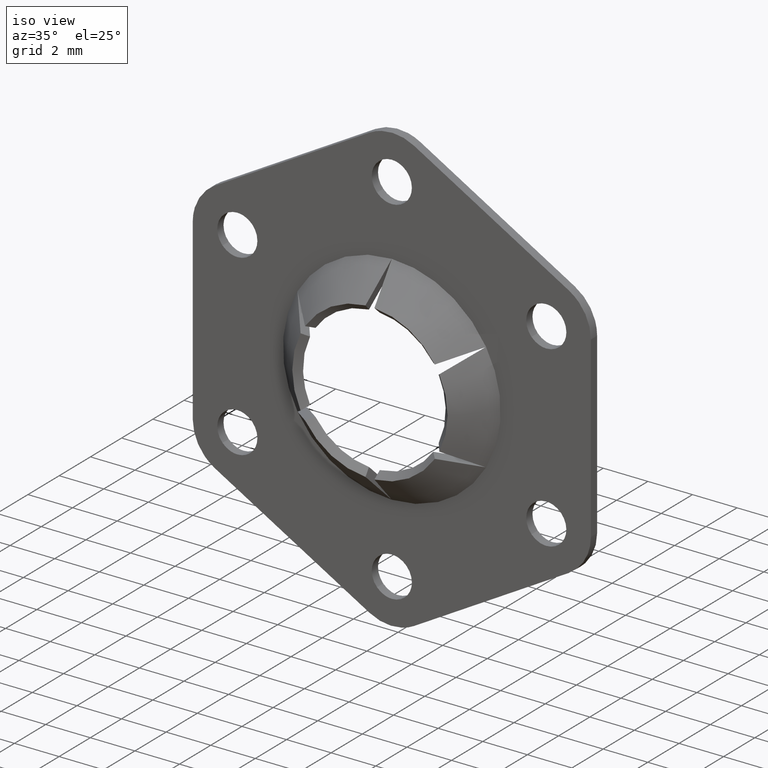
[diagram: clean part render]
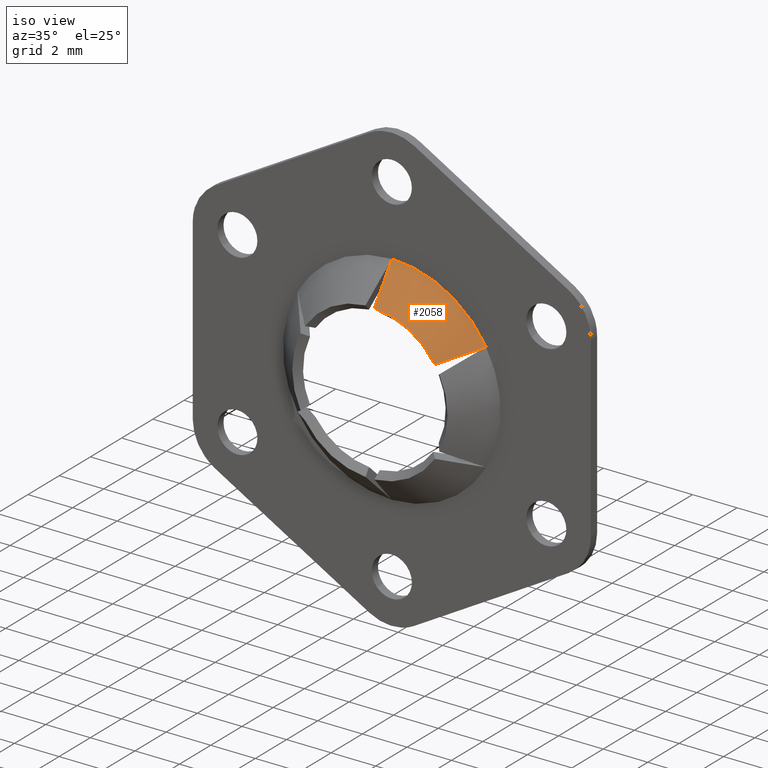
[diagram: tour spotlight — one face highlighted and labeled with its STEP entity id]
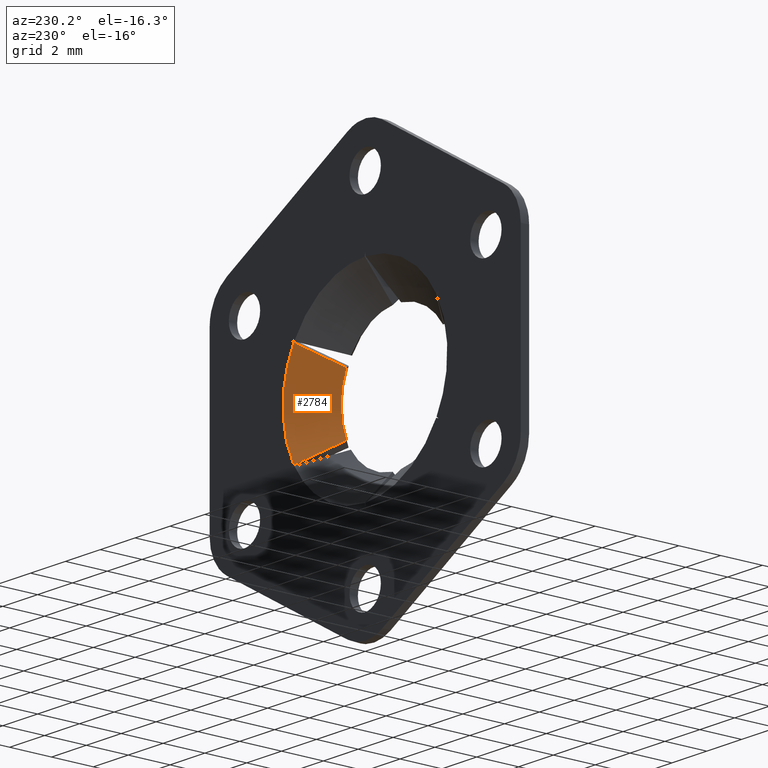
[diagram: tour spotlight — one face highlighted and labeled with its STEP entity id]
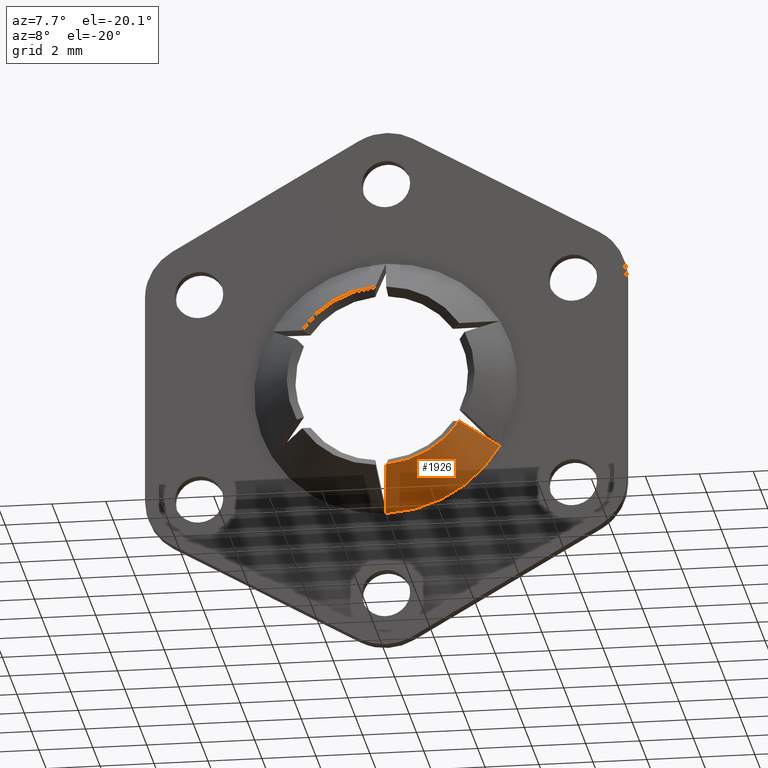
[diagram: tour spotlight — one face highlighted and labeled with its STEP entity id]
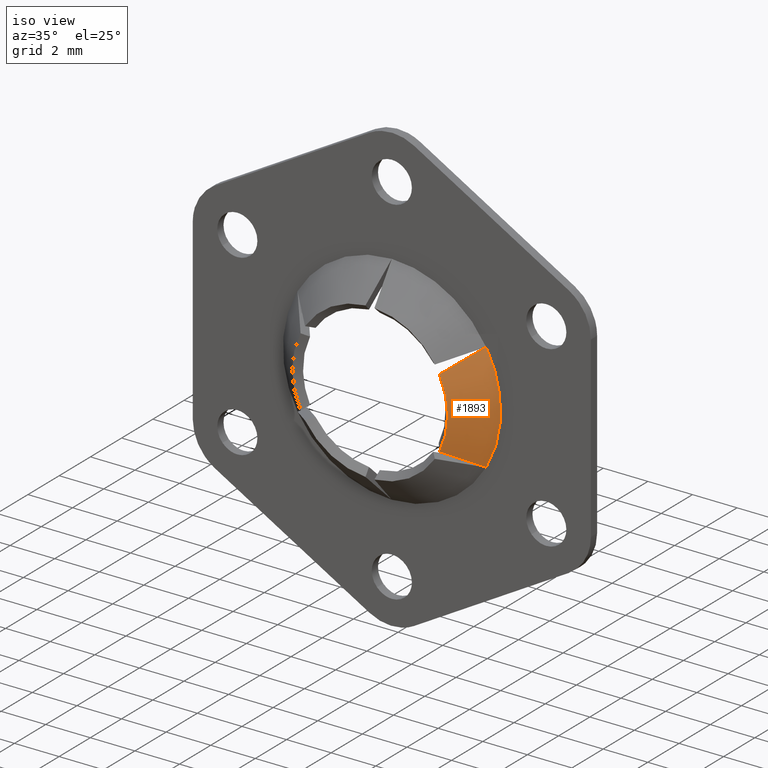
[diagram: tour spotlight — one face highlighted and labeled with its STEP entity id]
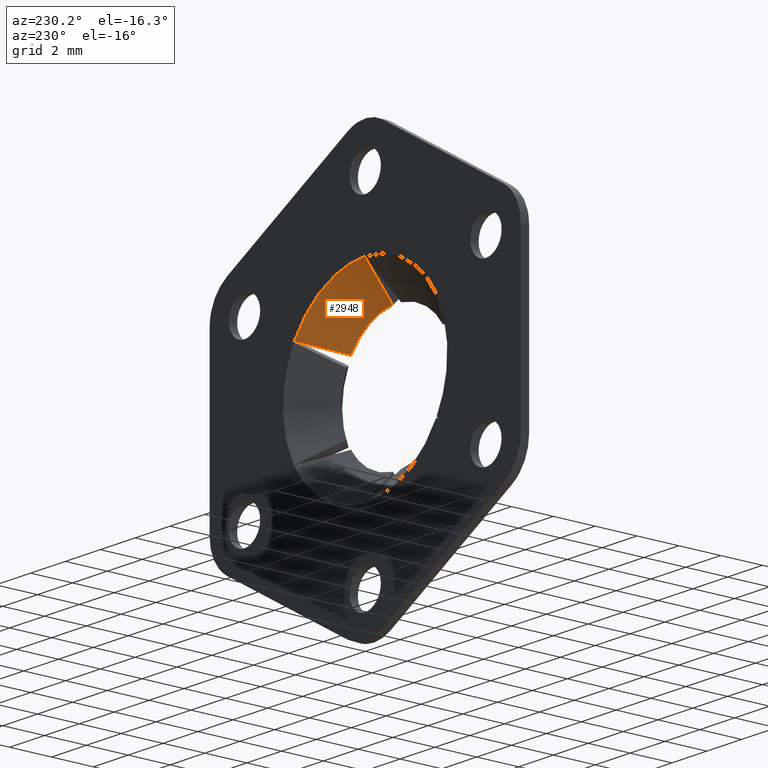
[diagram: tour spotlight — one face highlighted and labeled with its STEP entity id]
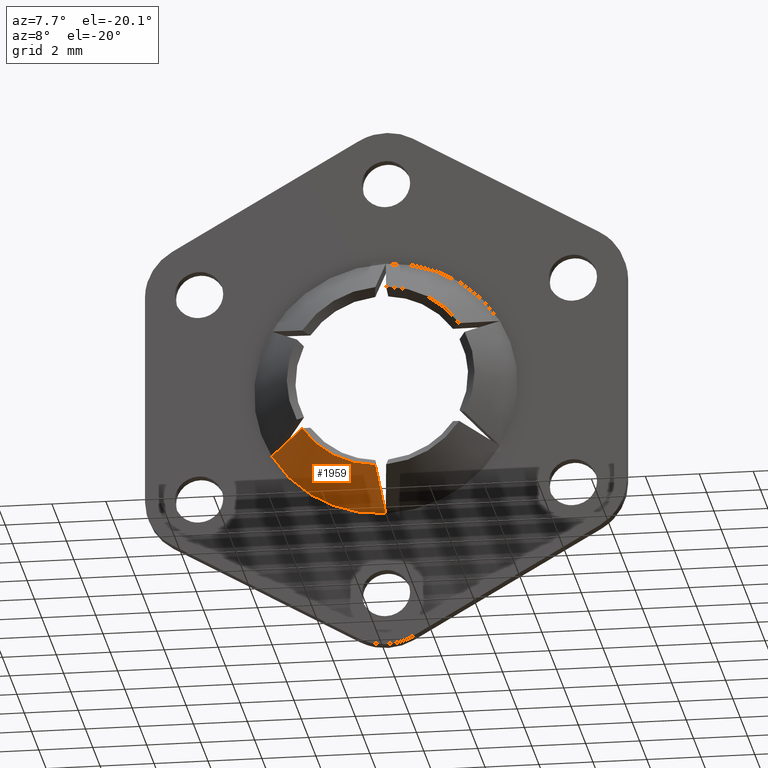
[diagram: tour spotlight — one face highlighted and labeled with its STEP entity id]
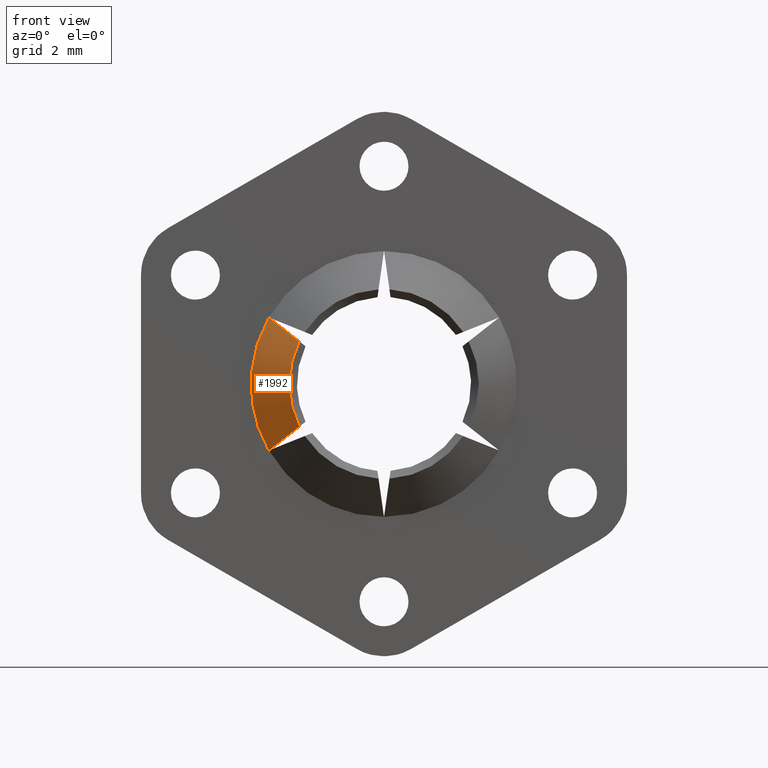
[diagram: tour spotlight — one face highlighted and labeled with its STEP entity id]
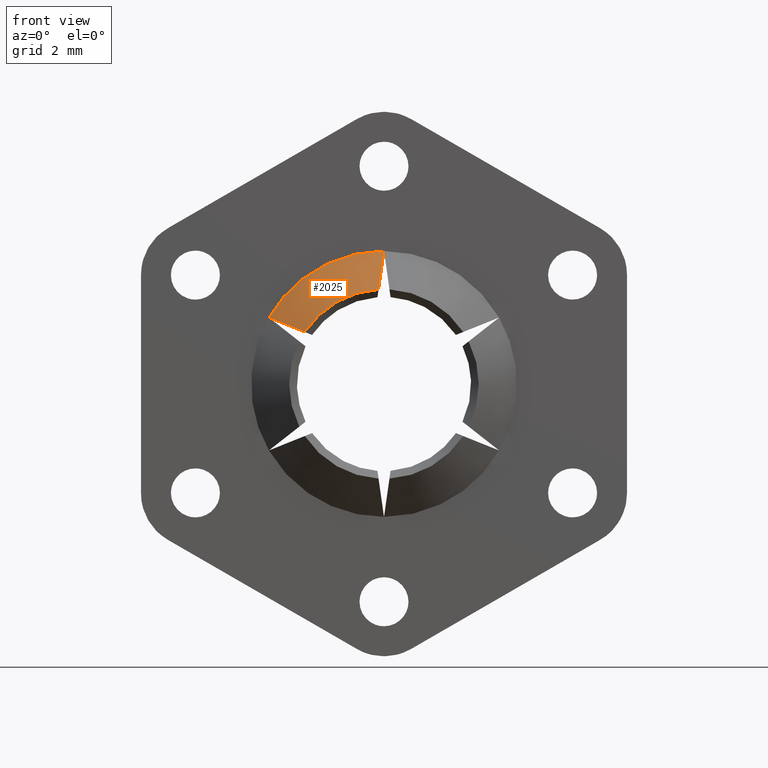
[diagram: tour spotlight — one face highlighted and labeled with its STEP entity id]
A machine part: a face-by-face anatomy tour. The part has 56 B-rep faces; the first image is the clean iso view, then the 8 largest visible faces are spotlighted one at a time (largest first), each with its STEP entity span.

Face 1 — iso view, entity #2058. In plain terms, the highlighted face is a freeform B-spline surface patch.
Definition (entity closure, byte-faithful):
#1368=CARTESIAN_POINT('',(4.228665831922995,-0.399999999778553,2.441421356044500));
#1369=VERTEX_POINT('',#1368);
#1370=CARTESIAN_POINT('',(5.671694E-010,-0.399999999432524,4.882842712437689));
#1371=VERTEX_POINT('',#1370);
#1372=CARTESIAN_POINT('',(4.228665831922995,-0.399999999778553,2.441421356044500));
#1373=CARTESIAN_POINT('',(4.082213974562479,-0.399999999834970,2.695137534144452));
#1374=CARTESIAN_POINT('',(3.774238652134671,-0.399999999914664,3.132353003157605));
#1375=CARTESIAN_POINT('',(3.203053055338855,-0.399999999969355,3.712971711155307));
#1376=CARTESIAN_POINT('',(2.600081776664502,-0.399999999958532,4.156361265983708));
#1377=CARTESIAN_POINT('',(1.983956836506249,-0.399999999893530,4.476000340431685));
#1378=CARTESIAN_POINT('',(1.395477017048084,-0.399999999795334,4.692012810198213));
#1379=CARTESIAN_POINT('',(0.745683961889104,-0.399999999651729,4.843522340398766));
#1380=CARTESIAN_POINT('',(0.266318580091984,-0.399999999516499,4.882863967473429));
#1381=CARTESIAN_POINT('',(5.671694E-010,-0.399999999432524,4.882842712437689));
#1382=B_SPLINE_CURVE_WITH_KNOTS('',3,(#1372,#1373,#1374,#1375,#1376,#1377,#1378,#1379,#1380,#1381),.UNSPECIFIED.,.F.,.U.,(4,1,1,1,1,1,1,4),(3.223950E-009,0.878850905600246,1.597912135177144,2.436818729151852,3.115923655223673,3.675194516514067,4.314361123087673,5.113315190832218),.UNSPECIFIED.);
#1383=EDGE_CURVE('',#1369,#1371,#1382,.T.);
#1819=CARTESIAN_POINT('',(0.200000000648660,-1.799999999999755,3.477095534436290));
#1820=VERTEX_POINT('',#1819);
#1839=CARTESIAN_POINT('',(2.911253064794080,-1.799999999999755,1.911752847953590));
#1840=VERTEX_POINT('',#1839);
#1846=CARTESIAN_POINT('',(2.911253064794080,-1.799999999999755,1.911752847953590));
#1847=CARTESIAN_POINT('',(2.758143847903166,-1.799999999999757,2.145046092451522));
#1848=CARTESIAN_POINT('',(2.505304537217076,-1.799999999999757,2.444302205702622));
#1849=CARTESIAN_POINT('',(2.072247280041721,-1.799999999999755,2.810564399428525));
#1850=CARTESIAN_POINT('',(1.724260011334876,-1.799999999999748,3.037673988051247));
#1851=CARTESIAN_POINT('',(1.266107479502572,-1.799999999999771,3.257371548567487));
#1852=CARTESIAN_POINT('',(0.772248610509275,-1.799999999999711,3.412901639271917));
#1853=CARTESIAN_POINT('',(0.385719605237097,-1.799999999999813,3.466422706323168));
#1854=CARTESIAN_POINT('',(0.200000000648660,-1.799999999999755,3.477095534436290));
#1855=B_SPLINE_CURVE_WITH_KNOTS('',3,(#1846,#1847,#1848,#1849,#1850,#1851,#1852,#1853,#1854),.UNSPECIFIED.,.F.,.U.,(4,1,1,1,1,1,4),(5.463257E-009,0.837120251755995,1.166897134908798,1.699606050078934,2.080114242575288,2.688932201111038,3.247011372020864),.UNSPECIFIED.);
#1856=EDGE_CURVE('',#1840,#1820,#1855,.T.);
#2026=CARTESIAN_POINT('',(3.038367714859402,-1.835000000013936,1.629705801194532));
#2027=CARTESIAN_POINT('',(4.334557676832496,-0.364124999417988,2.324950254504464));
#2028=CARTESIAN_POINT('',(2.007231822347071,-1.835000000013936,3.552120265548171));
#2029=CARTESIAN_POINT('',(2.863531646264251,-0.364124999417988,5.067480835721034));
#2030=CARTESIAN_POINT('',(-0.171560462519251,-1.835000000013936,3.443571746487400));
#2031=CARTESIAN_POINT('',(-0.244749414955127,-0.364124999417988,4.912624721917278));
#2039=(BOUNDED_SURFACE()B_SPLINE_SURFACE(1,2,((#2026,#2028,#2030),(#2027,#2029,#2031)),.UNSPECIFIED.,.F.,.F.,.U.)B_SPLINE_SURFACE_WITH_KNOTS((2,2),(3,3),(0.0,2.080131374398302),(0.0,5.701569485248939),.UNSPECIFIED.)GEOMETRIC_REPRESENTATION_ITEM()RATIONAL_B_SPLINE_SURFACE(((1.0,0.844295815013650,0.998201706540709),(1.0,0.844295815013650,0.998201706540709)))REPRESENTATION_ITEM('')SURFACE());
#2040=CARTESIAN_POINT('',(0.200000000648659,-1.799999999999757,3.477095534436292));
#2041=CARTESIAN_POINT('',(0.133143661611808,-1.334699059106625,3.947011083907615));
#2042=CARTESIAN_POINT('',(0.066532033697918,-0.867636088343224,4.415206623527004));
#2043=CARTESIAN_POINT('',(5.671690E-010,-0.399999999432526,4.882842712437693));
#2044=QUASI_UNIFORM_CURVE('',3,(#2040,#2041,#2042,#2043),.UNSPECIFIED.,.F.,.U.);
#2045=EDGE_CURVE('',#1820,#1371,#2044,.T.);
#2046=ORIENTED_EDGE('',*,*,#2045,.F.);
#2047=ORIENTED_EDGE('',*,*,#1856,.F.);
#2048=CARTESIAN_POINT('',(4.228665831922995,-0.399999999778553,2.441421356044500));
#2049=CARTESIAN_POINT('',(3.790415082753387,-0.867636088572851,2.265221742472861));
#2050=CARTESIAN_POINT('',(3.351640037666758,-1.334699059220369,2.088811334651315));
#2051=CARTESIAN_POINT('',(2.911253064794082,-1.799999999999756,1.911752847953590));
#2052=QUASI_UNIFORM_CURVE('',3,(#2048,#2049,#2050,#2051),.UNSPECIFIED.,.F.,.U.);
#2053=EDGE_CURVE('',#1369,#1840,#2052,.T.);
#2054=ORIENTED_EDGE('',*,*,#2053,.F.);
#2055=ORIENTED_EDGE('',*,*,#1383,.T.);
#2056=EDGE_LOOP('',(#2046,#2047,#2054,#2055));
#2057=FACE_OUTER_BOUND('',#2056,.T.);
#2058=ADVANCED_FACE('',(#2057),#2039,.T.);

Face 2 — auxiliary view, entity #2784. In plain terms, the highlighted face is a freeform B-spline surface patch.
Definition (entity closure, byte-faithful):
#1527=CARTESIAN_POINT('',(2.883786124160710,-1.517157287525135,-1.387003096428676));
#1528=VERTEX_POINT('',#1527);
#1548=CARTESIAN_POINT('',(2.883786124640455,-1.517157286957820,1.387003096740090));
#1549=VERTEX_POINT('',#1548);
#1555=CARTESIAN_POINT('',(2.883786124160710,-1.517157287525135,-1.387003096428676));
#1556=CARTESIAN_POINT('',(2.993956600963651,-1.517157287577148,-1.158089051222620));
#1557=CARTESIAN_POINT('',(3.137386547922710,-1.517157287619885,-0.737936672239237));
#1558=CARTESIAN_POINT('',(3.215354183745753,-1.517157287560421,-0.105182546811972));
#1559=CARTESIAN_POINT('',(3.186342547725444,-1.517157287428692,0.411695005910345));
#1560=CARTESIAN_POINT('',(3.078578164545812,-1.517157287228679,0.916906066359411));
#1561=CARTESIAN_POINT('',(2.964764035863858,-1.517157287064930,1.218673552932887));
#1562=CARTESIAN_POINT('',(2.883786124640455,-1.517157286957820,1.387003096740090));
#1563=B_SPLINE_CURVE_WITH_KNOTS('',3,(#1555,#1556,#1557,#1558,#1559,#1560,#1561,#1562),.UNSPECIFIED.,.F.,.U.,(4,1,1,1,1,4),(5.083764E-009,0.762120130689540,1.322505268930577,1.905297423209968,2.308774566487862,2.869156555378236),.UNSPECIFIED.);
#1564=EDGE_CURVE('',#1528,#1549,#1563,.T.);
#2678=CARTESIAN_POINT('',(4.096917482384055,0.0,-2.338127459471490));
#2679=VERTEX_POINT('',#2678);
#2680=CARTESIAN_POINT('',(2.883786124160710,-1.517157287525135,-1.387003096428676));
#2681=CARTESIAN_POINT('',(3.289696845037899,-1.013418259668806,-1.705246931424149));
#2682=CARTESIAN_POINT('',(3.693574139123500,-0.507053827909486,-2.021896510636549));
#2683=CARTESIAN_POINT('',(4.096917482384057,-2.000041E-015,-2.338127459471490));
#2684=QUASI_UNIFORM_CURVE('',3,(#2680,#2681,#2682,#2683),.UNSPECIFIED.,.F.,.U.);
#2685=EDGE_CURVE('',#1528,#2679,#2684,.T.);
#2709=CARTESIAN_POINT('',(4.096917482384026,0.0,2.338127459471545));
#2710=VERTEX_POINT('',#2709);
#2716=CARTESIAN_POINT('',(4.096917482384026,-6.443662E-016,2.338127459471546));
#2717=CARTESIAN_POINT('',(3.693574139273393,-0.507053827721010,2.021896510754152));
#2718=CARTESIAN_POINT('',(3.289696845337934,-1.013418259292137,1.705246931659470));
#2719=CARTESIAN_POINT('',(2.883786124640449,-1.517157286957822,1.387003096740100));
#2720=QUASI_UNIFORM_CURVE('',3,(#2716,#2717,#2718,#2719),.UNSPECIFIED.,.F.,.U.);
#2721=EDGE_CURVE('',#2710,#1549,#2720,.T.);
#2752=CARTESIAN_POINT('',(2.732521317531987,-1.555086219788761,-1.591232442456965));
#2753=CARTESIAN_POINT('',(4.109953642408036,0.038877155494719,-2.393354273684345));
#2754=CARTESIAN_POINT('',(3.703103766820908,-1.555086219788761,0.075486486713972));
#2755=CARTESIAN_POINT('',(5.569795454947929,0.038877155494719,0.113538349748163));
#2756=CARTESIAN_POINT('',(2.665404851594406,-1.555086219788760,1.701267296375022));
#2757=CARTESIAN_POINT('',(4.009004543897784,0.038877155494719,2.558856422114891));
#2765=(BOUNDED_SURFACE()B_SPLINE_SURFACE(1,2,((#2752,#2754,#2756),(#2753,#2755,#2757)),.UNSPECIFIED.,.F.,.F.,.U.)B_SPLINE_SURFACE_WITH_KNOTS((2,2),(3,3),(0.0,2.254204623251870),(0.0,5.344106603031732),.UNSPECIFIED.)GEOMETRIC_REPRESENTATION_ITEM()RATIONAL_B_SPLINE_SURFACE(((1.0,0.853223754631969,0.998837441838278),(1.0,0.853223754631969,0.998837441838278)))REPRESENTATION_ITEM('')SURFACE());
#2766=ORIENTED_EDGE('',*,*,#2685,.F.);
#2767=ORIENTED_EDGE('',*,*,#1564,.T.);
#2768=ORIENTED_EDGE('',*,*,#2721,.F.);
#2769=CARTESIAN_POINT('',(4.096917482384055,0.0,-2.338127459471490));
#2770=CARTESIAN_POINT('',(4.267494843952375,0.0,-2.039375215499924));
#2771=CARTESIAN_POINT('',(4.491783098417831,0.0,-1.521925076195961));
#2772=CARTESIAN_POINT('',(4.658396806185126,0.0,-0.813270560915193));
#2773=CARTESIAN_POINT('',(4.721076613816451,0.0,-0.242551454385376));
#2774=CARTESIAN_POINT('',(4.718752641582490,0.0,0.331858116992912));
#2775=CARTESIAN_POINT('',(4.630239657379656,0.0,0.990050967355044));
#2776=CARTESIAN_POINT('',(4.429917981779575,0.0,1.677305953446717));
#2777=CARTESIAN_POINT('',(4.216921590578015,0.0,2.127880824076427));
#2778=CARTESIAN_POINT('',(4.096917482384026,0.0,2.338127459471545));
#2779=B_SPLINE_CURVE_WITH_KNOTS('',3,(#2769,#2770,#2771,#2772,#2773,#2774,#2775,#2776,#2777,#2778),.UNSPECIFIED.,.F.,.U.,(4,1,1,1,1,1,1,4),(3.504942E-009,1.032042556748139,1.681848063950727,2.178760920529561,2.752111089576030,3.401917337270820,4.166394822494453,4.892646820824748),.UNSPECIFIED.);
#2780=EDGE_CURVE('',#2679,#2710,#2779,.T.);
#2781=ORIENTED_EDGE('',*,*,#2780,.F.);
#2782=EDGE_LOOP('',(#2766,#2767,#2768,#2781));
#2783=FACE_OUTER_BOUND('',#2782,.T.);
#2784=ADVANCED_FACE('',(#2783),#2765,.F.);

Face 3 — auxiliary view, entity #1926. In plain terms, the highlighted face is a freeform B-spline surface patch.
Definition (entity closure, byte-faithful):
#1385=CARTESIAN_POINT('',(4.228665831922940,-0.399999999778694,-2.441421356044315));
#1386=VERTEX_POINT('',#1385);
#1400=CARTESIAN_POINT('',(5.671552E-010,-0.399999999432510,-4.882842712437710));
#1401=VERTEX_POINT('',#1400);
#1402=CARTESIAN_POINT('',(5.671552E-010,-0.399999999432510,-4.882842712437710));
#1403=CARTESIAN_POINT('',(0.239685894495929,-0.399999999491425,-4.882856136851310));
#1404=CARTESIAN_POINT('',(0.625842288741747,-0.399999999578240,-4.854349014677995));
#1405=CARTESIAN_POINT('',(1.201527657926056,-0.399999999687917,-4.742279041430566));
#1406=CARTESIAN_POINT('',(1.826320833412122,-0.399999999786887,-4.549995974123616));
#1407=CARTESIAN_POINT('',(2.463358174566005,-0.399999999855187,-4.239072925915731));
#1408=CARTESIAN_POINT('',(3.021217878623665,-0.399999999881705,-3.849549527428501));
#1409=CARTESIAN_POINT('',(3.430790404217528,-0.399999999879556,-3.487391842433408));
#1410=CARTESIAN_POINT('',(3.844581188699480,-0.399999999852697,-3.034583002830239));
#1411=CARTESIAN_POINT('',(4.095525779814480,-0.399999999811456,-2.672071662843246));
#1412=CARTESIAN_POINT('',(4.228665831922940,-0.399999999778694,-2.441421356044315));
#1413=B_SPLINE_CURVE_WITH_KNOTS('',3,(#1402,#1403,#1404,#1405,#1406,#1407,#1408,#1409,#1410,#1411,#1412),.UNSPECIFIED.,.F.,.U.,(4,1,1,1,1,1,1,1,4),(3.223587E-009,0.719057276337212,1.158484981428811,1.757703529302074,2.676496464932868,3.275714870168947,3.795038565905387,4.314361123133773,5.113315190886889),.UNSPECIFIED.);
#1414=EDGE_CURVE('',#1401,#1386,#1413,.T.);
#1583=CARTESIAN_POINT('',(0.200000000648650,-1.799999999999755,-3.477095534436290));
#1584=VERTEX_POINT('',#1583);
#1592=CARTESIAN_POINT('',(2.911253064794126,-1.799999999999755,-1.911752847953520));
#1593=VERTEX_POINT('',#1592);
#1594=CARTESIAN_POINT('',(0.200000000648650,-1.799999999999755,-3.477095534436290));
#1595=CARTESIAN_POINT('',(0.385720634755419,-1.799999999999759,-3.466426201001502));
#1596=CARTESIAN_POINT('',(0.688215282810916,-1.799999999999751,-3.424522408653563));
#1597=CARTESIAN_POINT('',(1.169836884468680,-1.799999999999758,-3.291924781499448));
#1598=CARTESIAN_POINT('',(1.575656897856036,-1.799999999999758,-3.118711077039376));
#1599=CARTESIAN_POINT('',(1.967447764375916,-1.799999999999743,-2.882878115433987));
#1600=CARTESIAN_POINT('',(2.310109573116161,-1.799999999999759,-2.619846615883303));
#1601=CARTESIAN_POINT('',(2.633703345551067,-1.799999999999748,-2.295982851685160));
#1602=CARTESIAN_POINT('',(2.827712631212256,-1.799999999999751,-2.038979456712473));
#1603=CARTESIAN_POINT('',(2.911253064794126,-1.799999999999755,-1.911752847953520));
#1604=B_SPLINE_CURVE_WITH_KNOTS('',3,(#1594,#1595,#1596,#1597,#1598,#1599,#1600,#1601,#1602,#1603),.UNSPECIFIED.,.F.,.U.,(4,1,1,1,1,1,1,4),(5.464396E-009,0.558079176374006,0.913222480072504,1.496674051967119,1.877177151917556,2.283054428781426,2.790402818187850,3.247011372020952),.UNSPECIFIED.);
#1605=EDGE_CURVE('',#1584,#1593,#1604,.T.);
#1894=CARTESIAN_POINT('',(-0.030087721250670,-1.835000000013936,-3.447711428570626));
#1895=CARTESIAN_POINT('',(-0.042923364157036,-0.364124999417974,-4.918530422753547));
#1896=CARTESIAN_POINT('',(2.097732363860233,-1.835000000013937,-3.466280633135902));
#1897=CARTESIAN_POINT('',(2.992640382865429,-0.364124999417974,-4.945021386244221));
#1898=CARTESIAN_POINT('',(3.068303865191045,-1.835000000013937,-1.572619076583619));
#1899=CARTESIAN_POINT('',(4.377264808562310,-0.364124999417974,-2.243509914281293));
#1907=(BOUNDED_SURFACE()B_SPLINE_SURFACE(1,2,((#1894,#1896,#1898),(#1895,#1897,#1899)),.UNSPECIFIED.,.F.,.F.,.U.)B_SPLINE_SURFACE_WITH_KNOTS((2,2),(3,3),(0.0,2.080131374398322),(0.0,5.582557313150018),.UNSPECIFIED.)GEOMETRIC_REPRESENTATION_ITEM()RATIONAL_B_SPLINE_SURFACE(((1.0,0.849639097865968,0.996851313523656),(1.0,0.849639097865968,0.996851313523656)))REPRESENTATION_ITEM('')SURFACE());
#1908=CARTESIAN_POINT('',(5.671693E-010,-0.399999999432509,-4.882842712437711));
#1909=CARTESIAN_POINT('',(0.066532033697915,-0.867636088343213,-4.415206623527016));
#1910=CARTESIAN_POINT('',(0.133143661611803,-1.334699059106619,-3.947011083907621));
#1911=CARTESIAN_POINT('',(0.200000000648650,-1.799999999999757,-3.477095534436292));
#1912=QUASI_UNIFORM_CURVE('',3,(#1908,#1909,#1910,#1911),.UNSPECIFIED.,.F.,.U.);
#1913=EDGE_CURVE('',#1401,#1584,#1912,.T.);
#1914=ORIENTED_EDGE('',*,*,#1913,.F.);
#1915=ORIENTED_EDGE('',*,*,#1414,.T.);
#1916=CARTESIAN_POINT('',(2.911253064794128,-1.799999999999757,-1.911752847953518));
#1917=CARTESIAN_POINT('',(3.351640037666760,-1.334699059220414,-2.088811334651227));
#1918=CARTESIAN_POINT('',(3.790415082753343,-0.867636088572941,-2.265221742472756));
#1919=CARTESIAN_POINT('',(4.228665831922941,-0.399999999778696,-2.441421356044315));
#1920=QUASI_UNIFORM_CURVE('',3,(#1916,#1917,#1918,#1919),.UNSPECIFIED.,.F.,.U.);
#1921=EDGE_CURVE('',#1593,#1386,#1920,.T.);
#1922=ORIENTED_EDGE('',*,*,#1921,.F.);
#1923=ORIENTED_EDGE('',*,*,#1605,.F.);
#1924=EDGE_LOOP('',(#1914,#1915,#1922,#1923));
#1925=FACE_OUTER_BOUND('',#1924,.T.);
#1926=ADVANCED_FACE('',(#1925),#1907,.T.);

Face 4 — iso view, entity #1893. In plain terms, the highlighted face is a freeform B-spline surface patch.
Definition (entity closure, byte-faithful):
#1368=CARTESIAN_POINT('',(4.228665831922995,-0.399999999778553,2.441421356044500));
#1369=VERTEX_POINT('',#1368);
#1385=CARTESIAN_POINT('',(4.228665831922940,-0.399999999778694,-2.441421356044315));
#1386=VERTEX_POINT('',#1385);
#1387=CARTESIAN_POINT('',(4.228665831922940,-0.399999999778694,-2.441421356044315));
#1388=CARTESIAN_POINT('',(4.415164644159419,-0.399999999824579,-2.118562625440129));
#1389=CARTESIAN_POINT('',(4.649607347703973,-0.399999999882251,-1.577425071139615));
#1390=CARTESIAN_POINT('',(4.822307301249190,-0.399999999924727,-0.836652171696700));
#1391=CARTESIAN_POINT('',(4.889917651106513,-0.399999999941345,-0.226993237701653));
#1392=CARTESIAN_POINT('',(4.881265795837216,-0.399999999939200,0.480406723348584));
#1393=CARTESIAN_POINT('',(4.752545058600859,-0.399999999907498,1.204673758926947));
#1394=CARTESIAN_POINT('',(4.518148493588883,-0.399999999849803,1.885893703829773));
#1395=CARTESIAN_POINT('',(4.335199159711318,-0.399999999804773,2.256915499587532));
#1396=CARTESIAN_POINT('',(4.228665831922995,-0.399999999778553,2.441421356044500));
#1397=B_SPLINE_CURVE_WITH_KNOTS('',3,(#1387,#1388,#1389,#1390,#1391,#1392,#1393,#1394,#1395,#1396),.UNSPECIFIED.,.F.,.U.,(4,1,1,1,1,1,1,4),(3.223986E-009,1.118536922695297,1.757703529260555,2.277028003934650,2.956133427169651,3.874934221944759,4.474154039083334,5.113315190765248),.UNSPECIFIED.);
#1398=EDGE_CURVE('',#1386,#1369,#1397,.T.);
#1525=CARTESIAN_POINT('',(3.111253064819965,-1.799999999999755,-1.565342686381095));
#1526=VERTEX_POINT('',#1525);
#1534=CARTESIAN_POINT('',(3.111253064819935,-1.799999999999755,1.565342686381155));
#1535=VERTEX_POINT('',#1534);
#1536=CARTESIAN_POINT('',(3.111253064819965,-1.799999999999755,-1.565342686381095));
#1537=CARTESIAN_POINT('',(3.248166648779356,-1.799999999999778,-1.293447811997303));
#1538=CARTESIAN_POINT('',(3.382625318352657,-1.799999999999718,-0.906805069023709));
#1539=CARTESIAN_POINT('',(3.473080716780291,-1.799999999999786,-0.346985019670936));
#1540=CARTESIAN_POINT('',(3.493952962603611,-1.799999999999715,0.093271352882118));
#1541=CARTESIAN_POINT('',(3.447324585319220,-1.799999999999782,0.565884639108387));
#1542=CARTESIAN_POINT('',(3.327988015900791,-1.799999999999745,1.068592170956538));
#1543=CARTESIAN_POINT('',(3.202479632534940,-1.799999999999765,1.384064499608604));
#1544=CARTESIAN_POINT('',(3.111253064819935,-1.799999999999755,1.565342686381155));
#1545=B_SPLINE_CURVE_WITH_KNOTS('',3,(#1536,#1537,#1538,#1539,#1540,#1541,#1542,#1543,#1544),.UNSPECIFIED.,.F.,.U.,(4,1,1,1,1,1,4),(5.463196E-009,0.913222480034711,1.217629680949476,1.699606050010118,2.232318876382984,2.638198184182730,3.247011371889406),.UNSPECIFIED.);
#1546=EDGE_CURVE('',#1526,#1535,#1545,.T.);
#1861=CARTESIAN_POINT('',(2.970761821726383,-1.835000000005285,-1.749912445724919));
#1862=CARTESIAN_POINT('',(4.238110613291283,-0.364124999772884,-2.496437935462247));
#1863=CARTESIAN_POINT('',(4.043109547642487,-1.835000000005285,0.070572739657481));
#1864=CARTESIAN_POINT('',(5.767929747684971,-0.364124999772884,0.100679588239315));
#1865=CARTESIAN_POINT('',(2.907881050261719,-1.835000000005285,1.852524538727490));
#1866=CARTESIAN_POINT('',(4.148404443317456,-0.364124999772884,2.642825100279901));
#1874=(BOUNDED_SURFACE()B_SPLINE_SURFACE(1,2,((#1861,#1863,#1865),(#1862,#1864,#1866)),.UNSPECIFIED.,.F.,.F.,.U.)B_SPLINE_SURFACE_WITH_KNOTS((2,2),(3,3),(0.0,2.080131373884169),(0.0,5.548887461823513),.UNSPECIFIED.)GEOMETRIC_REPRESENTATION_ITEM()RATIONAL_B_SPLINE_SURFACE(((1.0,0.852640164354093,1.0),(1.0,0.852640164354093,1.0)))REPRESENTATION_ITEM('')SURFACE());
#1875=CARTESIAN_POINT('',(4.228665831922940,-0.399999999778694,-2.441421356044315));
#1876=CARTESIAN_POINT('',(3.856947115866550,-0.867636088574105,-2.149984880787409));
#1877=CARTESIAN_POINT('',(3.484783698675756,-1.334699059222061,-1.858199749071793));
#1878=CARTESIAN_POINT('',(3.111253064819969,-1.799999999999758,-1.565342686381095));
#1879=QUASI_UNIFORM_CURVE('',3,(#1875,#1876,#1877,#1878),.UNSPECIFIED.,.F.,.U.);
#1880=EDGE_CURVE('',#1386,#1526,#1879,.T.);
#1881=ORIENTED_EDGE('',*,*,#1880,.F.);
#1882=ORIENTED_EDGE('',*,*,#1398,.T.);
#1883=CARTESIAN_POINT('',(3.111253064819937,-1.799999999999758,1.565342686381157));
#1884=CARTESIAN_POINT('',(3.484783698675762,-1.334699059222013,1.858199749071882));
#1885=CARTESIAN_POINT('',(3.856947115866595,-0.867636088574009,2.149984880787526));
#1886=CARTESIAN_POINT('',(4.228665831922996,-0.399999999778555,2.441421356044501));
#1887=QUASI_UNIFORM_CURVE('',3,(#1883,#1884,#1885,#1886),.UNSPECIFIED.,.F.,.U.);
#1888=EDGE_CURVE('',#1535,#1369,#1887,.T.);
#1889=ORIENTED_EDGE('',*,*,#1888,.F.);
#1890=ORIENTED_EDGE('',*,*,#1546,.F.);
#1891=EDGE_LOOP('',(#1881,#1882,#1889,#1890));
#1892=FACE_OUTER_BOUND('',#1891,.T.);
#1893=ADVANCED_FACE('',(#1892),#1874,.T.);

Face 5 — auxiliary view, entity #2948. In plain terms, the highlighted face is a freeform B-spline surface patch.
Definition (entity closure, byte-faithful):
#1817=CARTESIAN_POINT('',(0.240713145676551,-1.517157286957840,3.190933590900285));
#1818=VERTEX_POINT('',#1817);
#1826=CARTESIAN_POINT('',(2.643072979051315,-1.517157287525135,1.803930493821855));
#1827=VERTEX_POINT('',#1826);
#1828=CARTESIAN_POINT('',(2.643072979051315,-1.517157287525135,1.803930493821855));
#1829=CARTESIAN_POINT('',(2.499911814038863,-1.517157287577146,2.013797048931001));
#1830=CARTESIAN_POINT('',(2.178065698114783,-1.517157287624242,2.382094065152273));
#1831=CARTESIAN_POINT('',(1.660066995109458,-1.517157287552396,2.755993497230718));
#1832=CARTESIAN_POINT('',(1.193896704062698,-1.517157287411295,2.979137231474824));
#1833=CARTESIAN_POINT('',(0.745225174953263,-1.517157287228740,3.124579566505858));
#1834=CARTESIAN_POINT('',(0.426979859332968,-1.517157287064819,3.176898186675830));
#1835=CARTESIAN_POINT('',(0.240713145676551,-1.517157286957840,3.190933590900285));
#1836=B_SPLINE_CURVE_WITH_KNOTS('',3,(#1828,#1829,#1830,#1831,#1832,#1833,#1834,#1835),.UNSPECIFIED.,.F.,.U.,(4,1,1,1,1,4),(5.085469E-009,0.762120130721470,1.456988846671986,1.905297423287359,2.308774566581328,2.869156555494018),.UNSPECIFIED.);
#1837=EDGE_CURVE('',#1827,#1818,#1836,.T.);
#2454=CARTESIAN_POINT('',(0.023580964328137,0.0,4.717098346197560));
#2455=VERTEX_POINT('',#2454);
#2461=CARTESIAN_POINT('',(0.023580964328136,-1.209457E-015,4.717098346197561));
#2462=CARTESIAN_POINT('',(0.095773327803901,-0.507053827720411,4.209677290257771));
#2463=CARTESIAN_POINT('',(0.168061260408711,-1.013418259291245,3.701584504150955));
#2464=CARTESIAN_POINT('',(0.240713145676551,-1.517157286957841,3.190933590900285));
#2465=QUASI_UNIFORM_CURVE('',3,(#2461,#2462,#2463,#2464),.UNSPECIFIED.,.F.,.U.);
#2466=EDGE_CURVE('',#2455,#1818,#2465,.T.);
#2734=CARTESIAN_POINT('',(4.073336518672430,0.0,2.378970886711640));
#2735=VERTEX_POINT('',#2734);
#2736=CARTESIAN_POINT('',(2.643072979051316,-1.517157287525136,1.803930493821855));
#2737=CARTESIAN_POINT('',(3.121635585193014,-1.013418259670151,1.996337572262086));
#2738=CARTESIAN_POINT('',(3.597800811909445,-0.507053827909752,2.187780779381806));
#2739=CARTESIAN_POINT('',(4.073336518672430,4.387245E-016,2.378970886711639));
#2740=QUASI_UNIFORM_CURVE('',3,(#2736,#2737,#2738,#2739),.UNSPECIFIED.,.F.,.U.);
#2741=EDGE_CURVE('',#1827,#2735,#2740,.T.);
#2916=CARTESIAN_POINT('',(2.744308377548902,-1.555086219788757,1.570816655635725));
#2917=CARTESIAN_POINT('',(4.127682422762774,0.038877155494719,2.362647125353583));
#2918=CARTESIAN_POINT('',(1.786178668568948,-1.555086219788758,3.244725177776165));
#2919=CARTESIAN_POINT('',(2.686570632589398,0.038877155494719,4.880353532241283));
#2920=CARTESIAN_POINT('',(-0.140638271196315,-1.555086219788757,3.158941960547907));
#2921=CARTESIAN_POINT('',(-0.211532393938919,0.038877155494719,4.751327989469775));
#2929=(BOUNDED_SURFACE()B_SPLINE_SURFACE(1,2,((#2916,#2918,#2920),(#2917,#2919,#2921)),.UNSPECIFIED.,.F.,.F.,.U.)B_SPLINE_SURFACE_WITH_KNOTS((2,2),(3,3),(0.0,2.254204623251867),(0.0,5.344106603031734),.UNSPECIFIED.)GEOMETRIC_REPRESENTATION_ITEM()RATIONAL_B_SPLINE_SURFACE(((1.0,0.853223754631969,0.998837441838278),(1.0,0.853223754631969,0.998837441838278)))REPRESENTATION_ITEM('')SURFACE());
#2930=ORIENTED_EDGE('',*,*,#2466,.F.);
#2931=CARTESIAN_POINT('',(4.073336518672430,0.0,2.378970886711640));
#2932=CARTESIAN_POINT('',(3.976953280759174,0.0,2.544004379078816));
#2933=CARTESIAN_POINT('',(3.735723740473423,0.0,2.904792510274227));
#2934=CARTESIAN_POINT('',(3.268531557755525,0.0,3.429888680472712));
#2935=CARTESIAN_POINT('',(2.732300554075699,0.0,3.864941984957918));
#2936=CARTESIAN_POINT('',(2.097363066364709,0.0,4.245378789848116));
#2937=CARTESIAN_POINT('',(1.458216878159015,0.0,4.508037122186724));
#2938=CARTESIAN_POINT('',(0.724157851340415,0.0,4.678204095489086));
#2939=CARTESIAN_POINT('',(0.265662217321759,0.0,4.715903144177521));
#2940=CARTESIAN_POINT('',(0.023580964328137,0.0,4.717098346197560));
#2941=B_SPLINE_CURVE_WITH_KNOTS('',3,(#2931,#2932,#2933,#2934,#2935,#2936,#2937,#2938,#2939,#2940),.UNSPECIFIED.,.F.,.U.,(4,1,1,1,1,1,1,4),(3.503363E-009,0.573354438214025,1.299609608296789,2.102310785765056,2.637437126718274,3.516589755329700,4.166394822473802,4.892646820800828),.UNSPECIFIED.);
#2942=EDGE_CURVE('',#2735,#2455,#2941,.T.);
#2943=ORIENTED_EDGE('',*,*,#2942,.F.);
#2944=ORIENTED_EDGE('',*,*,#2741,.F.);
#2945=ORIENTED_EDGE('',*,*,#1837,.T.);
#2946=EDGE_LOOP('',(#2930,#2943,#2944,#2945));
#2947=FACE_OUTER_BOUND('',#2946,.T.);
#2948=ADVANCED_FACE('',(#2947),#2929,.F.);

Face 6 — auxiliary view, entity #1959. In plain terms, the highlighted face is a freeform B-spline surface patch.
Definition (entity closure, byte-faithful):
#1400=CARTESIAN_POINT('',(5.671552E-010,-0.399999999432510,-4.882842712437710));
#1401=VERTEX_POINT('',#1400);
#1416=CARTESIAN_POINT('',(-4.228665830788684,-0.399999999778627,-2.441421356044400));
#1417=VERTEX_POINT('',#1416);
#1418=CARTESIAN_POINT('',(-4.228665830788684,-0.399999999778627,-2.441421356044400));
#1419=CARTESIAN_POINT('',(-4.068905934018312,-0.399999999840170,-2.718207244617506));
#1420=CARTESIAN_POINT('',(-3.757111340214515,-0.399999999917752,-3.153208301724333));
#1421=CARTESIAN_POINT('',(-3.162647854380404,-0.399999999970687,-3.747680327774072));
#1422=CARTESIAN_POINT('',(-2.512273918916967,-0.399999999955714,-4.217799131548426));
#1423=CARTESIAN_POINT('',(-1.824928991175072,-0.399999999871824,-4.546301072766283));
#1424=CARTESIAN_POINT('',(-1.252879425909007,-0.399999999764728,-4.727507145443245));
#1425=CARTESIAN_POINT('',(-0.679103875737071,-0.399999999632937,-4.848982786883599));
#1426=CARTESIAN_POINT('',(-0.266318879773858,-0.399999999516487,-4.882863156542629));
#1427=CARTESIAN_POINT('',(5.671552E-010,-0.399999999432510,-4.882842712437710));
#1428=B_SPLINE_CURVE_WITH_KNOTS('',3,(#1418,#1419,#1420,#1421,#1422,#1423,#1424,#1425,#1426,#1427),.UNSPECIFIED.,.F.,.U.,(4,1,1,1,1,1,1,4),(3.224264E-009,0.958745465075141,1.597912135177339,2.516711751212430,3.355611664772798,3.874934221995583,4.314361123087767,5.113315190832310),.UNSPECIFIED.);
#1429=EDGE_CURVE('',#1417,#1401,#1428,.T.);
#1642=CARTESIAN_POINT('',(-2.911253063659830,-1.799999999999755,-1.911752847953540));
#1643=VERTEX_POINT('',#1642);
#1651=CARTESIAN_POINT('',(-0.199999999514337,-1.799999999999755,-3.477095534436290));
#1652=VERTEX_POINT('',#1651);
#1653=CARTESIAN_POINT('',(-2.911253063659830,-1.799999999999755,-1.911752847953540));
#1654=CARTESIAN_POINT('',(-2.799875004606609,-1.799999999999755,-2.081396476962632));
#1655=CARTESIAN_POINT('',(-2.578901214891411,-1.799999999999752,-2.361149676686404));
#1656=CARTESIAN_POINT('',(-2.231483516775092,-1.799999999999756,-2.684398956602609));
#1657=CARTESIAN_POINT('',(-1.903781276413787,-1.799999999999754,-2.924761473942724));
#1658=CARTESIAN_POINT('',(-1.515014270940876,-1.799999999999745,-3.149228768406267));
#1659=CARTESIAN_POINT('',(-0.948009684507663,-1.799999999999761,-3.376757443561369));
#1660=CARTESIAN_POINT('',(-0.478587778027047,-1.799999999999755,-3.461132624701611));
#1661=CARTESIAN_POINT('',(-0.199999999514337,-1.799999999999755,-3.477095534436290));
#1662=B_SPLINE_CURVE_WITH_KNOTS('',3,(#1653,#1654,#1655,#1656,#1657,#1658,#1659,#1660,#1661),.UNSPECIFIED.,.F.,.U.,(4,1,1,1,1,1,4),(5.463657E-009,0.608813193194776,1.065426517832338,1.420571731845908,1.826439645638367,2.409891125728186,3.247011372020965),.UNSPECIFIED.);
#1663=EDGE_CURVE('',#1643,#1652,#1662,.T.);
#1927=CARTESIAN_POINT('',(-3.000849542402429,-1.835000000013936,-1.697798982848091));
#1928=CARTESIAN_POINT('',(-4.281033977186938,-0.364124999417974,-2.422092487108308));
#1929=CARTESIAN_POINT('',(-1.953020902729193,-1.835000000013937,-3.549829833519887));
#1930=CARTESIAN_POINT('',(-2.786193951030235,-0.364124999417974,-5.064213288582674));
#1931=CARTESIAN_POINT('',(0.172223862080508,-1.835000000013937,-3.443538631586137));
#1932=CARTESIAN_POINT('',(0.245695825153244,-0.364124999417974,-4.912577479956157));
#1940=(BOUNDED_SURFACE()B_SPLINE_SURFACE(1,2,((#1927,#1929,#1931),(#1928,#1930,#1932)),.UNSPECIFIED.,.F.,.F.,.U.)B_SPLINE_SURFACE_WITH_KNOTS((2,2),(3,3),(0.0,2.080131374398322),(0.0,5.582557313150018),.UNSPECIFIED.)GEOMETRIC_REPRESENTATION_ITEM()RATIONAL_B_SPLINE_SURFACE(((1.0,0.849639097865968,0.996851313523656),(1.0,0.849639097865968,0.996851313523656)))REPRESENTATION_ITEM('')SURFACE());
#1941=CARTESIAN_POINT('',(-4.228665830788684,-0.399999999778627,-2.441421356044400));
#1942=CARTESIAN_POINT('',(-3.790415081619071,-0.867636088572896,-2.265221742472831));
#1943=CARTESIAN_POINT('',(-3.351640036532475,-1.334699059220391,-2.088811334651275));
#1944=CARTESIAN_POINT('',(-2.911253063659832,-1.799999999999757,-1.911752847953539));
#1945=QUASI_UNIFORM_CURVE('',3,(#1941,#1942,#1943,#1944),.UNSPECIFIED.,.F.,.U.);
#1946=EDGE_CURVE('',#1417,#1643,#1945,.T.);
#1947=ORIENTED_EDGE('',*,*,#1946,.F.);
#1948=ORIENTED_EDGE('',*,*,#1429,.T.);
#1949=CARTESIAN_POINT('',(-0.199999999514337,-1.799999999999758,-3.477095534436293));
#1950=CARTESIAN_POINT('',(-0.133143660477485,-1.334699059106620,-3.947011083907621));
#1951=CARTESIAN_POINT('',(-0.066532032563593,-0.867636088343213,-4.415206623527015));
#1952=CARTESIAN_POINT('',(5.671558E-010,-0.399999999432509,-4.882842712437710));
#1953=QUASI_UNIFORM_CURVE('',3,(#1949,#1950,#1951,#1952),.UNSPECIFIED.,.F.,.U.);
#1954=EDGE_CURVE('',#1652,#1401,#1953,.T.);
#1955=ORIENTED_EDGE('',*,*,#1954,.F.);
#1956=ORIENTED_EDGE('',*,*,#1663,.F.);
#1957=EDGE_LOOP('',(#1947,#1948,#1955,#1956));
#1958=FACE_OUTER_BOUND('',#1957,.T.);
#1959=ADVANCED_FACE('',(#1958),#1940,.T.);

Face 7 — front view, entity #1992. In plain terms, the highlighted face is a freeform B-spline surface patch.
Definition (entity closure, byte-faithful):
#1416=CARTESIAN_POINT('',(-4.228665830788684,-0.399999999778627,-2.441421356044400));
#1417=VERTEX_POINT('',#1416);
#1431=CARTESIAN_POINT('',(-4.228665830788640,-0.399999999778665,2.441421356044400));
#1432=VERTEX_POINT('',#1431);
#1433=CARTESIAN_POINT('',(-4.228665830788640,-0.399999999778665,2.441421356044400));
#1434=CARTESIAN_POINT('',(-4.401826599728379,-0.399999999821264,2.141616475652994));
#1435=CARTESIAN_POINT('',(-4.597107708727448,-0.399999999869307,1.700860255326421));
#1436=CARTESIAN_POINT('',(-4.774813209907452,-0.399999999913020,1.058636355198880));
#1437=CARTESIAN_POINT('',(-4.854625645207110,-0.399999999932657,0.598688570805035));
#1438=CARTESIAN_POINT('',(-4.893527968963335,-0.399999999942216,0.040208125732863));
#1439=CARTESIAN_POINT('',(-4.865322006884288,-0.399999999935278,-0.586518248872595));
#1440=CARTESIAN_POINT('',(-4.750473046821370,-0.399999999907019,-1.176467558974842));
#1441=CARTESIAN_POINT('',(-4.549260969399645,-0.399999999857504,-1.811606612874586));
#1442=CARTESIAN_POINT('',(-4.375167878904707,-0.399999999814675,-2.187732433963310));
#1443=CARTESIAN_POINT('',(-4.228665830788684,-0.399999999778627,-2.441421356044400));
#1444=B_SPLINE_CURVE_WITH_KNOTS('',3,(#1433,#1434,#1435,#1436,#1437,#1438,#1439,#1440,#1441,#1442,#1443),.UNSPECIFIED.,.F.,.U.,(4,1,1,1,1,1,1,1,4),(3.224199E-009,1.038640936666277,1.438120677523381,1.997391538806437,2.436818729119971,3.115923655182889,3.874934221944738,4.234464288400508,5.113315190765258),.UNSPECIFIED.);
#1445=EDGE_CURVE('',#1432,#1417,#1444,.T.);
#1700=CARTESIAN_POINT('',(-3.111253063685640,-1.799999999999755,1.565342686381190));
#1701=VERTEX_POINT('',#1700);
#1709=CARTESIAN_POINT('',(-3.111253063685680,-1.799999999999755,-1.565342686381110));
#1710=VERTEX_POINT('',#1709);
#1711=CARTESIAN_POINT('',(-3.111253063685640,-1.799999999999755,1.565342686381190));
#1712=CARTESIAN_POINT('',(-3.179663025554013,-1.799999999999753,1.429380832769377));
#1713=CARTESIAN_POINT('',(-3.311845495005636,-1.799999999999759,1.117257645668732));
#1714=CARTESIAN_POINT('',(-3.431638338637913,-1.799999999999754,0.657567301250341));
#1715=CARTESIAN_POINT('',(-3.492696962486882,-1.799999999999748,0.135979888564648));
#1716=CARTESIAN_POINT('',(-3.476893780685377,-1.799999999999760,-0.407028912179862));
#1717=CARTESIAN_POINT('',(-3.353099269653599,-1.799999999999750,-1.005500290839921));
#1718=CARTESIAN_POINT('',(-3.202478321507796,-1.799999999999755,-1.384064224019299));
#1719=CARTESIAN_POINT('',(-3.111253063685680,-1.799999999999755,-1.565342686381110));
#1720=B_SPLINE_CURVE_WITH_KNOTS('',3,(#1711,#1712,#1713,#1714,#1715,#1716,#1717,#1718,#1719),.UNSPECIFIED.,.F.,.U.,(4,1,1,1,1,1,4),(5.464113E-009,0.456608559278726,1.014692500970244,1.420571731788801,2.029381696403513,2.638198184182964,3.247011371889452),.UNSPECIFIED.);
#1721=EDGE_CURVE('',#1701,#1710,#1720,.T.);
#1960=CARTESIAN_POINT('',(-2.970761820592073,-1.835000000005283,1.749912445724971));
#1961=CARTESIAN_POINT('',(-4.238110612156893,-0.364124999772961,2.496437935462280));
#1962=CARTESIAN_POINT('',(-4.043109546508211,-1.835000000005283,-0.070572739657413));
#1963=CARTESIAN_POINT('',(-5.767929746550601,-0.364124999772961,-0.100679588239215));
#1964=CARTESIAN_POINT('',(-2.907881049127471,-1.835000000005283,-1.852524538727442));
#1965=CARTESIAN_POINT('',(-4.148404442183153,-0.364124999772961,-2.642825100279789));
#1973=(BOUNDED_SURFACE()B_SPLINE_SURFACE(1,2,((#1960,#1962,#1964),(#1961,#1963,#1965)),.UNSPECIFIED.,.F.,.F.,.U.)B_SPLINE_SURFACE_WITH_KNOTS((2,2),(3,3),(0.0,2.080131373884056),(0.0,5.548887461823428),.UNSPECIFIED.)GEOMETRIC_REPRESENTATION_ITEM()RATIONAL_B_SPLINE_SURFACE(((1.0,0.852640164354093,1.0),(1.0,0.852640164354093,1.0)))REPRESENTATION_ITEM('')SURFACE());
#1974=CARTESIAN_POINT('',(-4.228665830788640,-0.399999999778665,2.441421356044400));
#1975=CARTESIAN_POINT('',(-3.856947114732230,-0.867636088574087,2.149984880787516));
#1976=CARTESIAN_POINT('',(-3.484783697541431,-1.334699059222050,1.858199749071895));
#1977=CARTESIAN_POINT('',(-3.111253063685640,-1.799999999999756,1.565342686381193));
#1978=QUASI_UNIFORM_CURVE('',3,(#1974,#1975,#1976,#1977),.UNSPECIFIED.,.F.,.U.);
#1979=EDGE_CURVE('',#1432,#1701,#1978,.T.);
#1980=ORIENTED_EDGE('',*,*,#1979,.F.);
#1981=ORIENTED_EDGE('',*,*,#1445,.T.);
#1982=CARTESIAN_POINT('',(-3.111253063685681,-1.799999999999756,-1.565342686381111));
#1983=CARTESIAN_POINT('',(-3.484783697541488,-1.334699059222036,-1.858199749071817));
#1984=CARTESIAN_POINT('',(-3.856947114732303,-0.867636088574058,-2.149984880787444));
#1985=CARTESIAN_POINT('',(-4.228665830788686,-0.399999999778629,-2.441421356044400));
#1986=QUASI_UNIFORM_CURVE('',3,(#1982,#1983,#1984,#1985),.UNSPECIFIED.,.F.,.U.);
#1987=EDGE_CURVE('',#1710,#1417,#1986,.T.);
#1988=ORIENTED_EDGE('',*,*,#1987,.F.);
#1989=ORIENTED_EDGE('',*,*,#1721,.F.);
#1990=EDGE_LOOP('',(#1980,#1981,#1988,#1989));
#1991=FACE_OUTER_BOUND('',#1990,.T.);
#1992=ADVANCED_FACE('',(#1991),#1973,.T.);

Face 8 — front view, entity #2025. In plain terms, the highlighted face is a freeform B-spline surface patch.
Definition (entity closure, byte-faithful):
#1370=CARTESIAN_POINT('',(5.671694E-010,-0.399999999432524,4.882842712437689));
#1371=VERTEX_POINT('',#1370);
#1431=CARTESIAN_POINT('',(-4.228665830788640,-0.399999999778665,2.441421356044400));
#1432=VERTEX_POINT('',#1431);
#1447=CARTESIAN_POINT('',(5.671694E-010,-0.399999999432524,4.882842712437689));
#1448=CARTESIAN_POINT('',(-0.213052677870530,-0.399999999484889,4.882846387272794));
#1449=CARTESIAN_POINT('',(-0.719059482879733,-0.399999999599845,4.849693036473575));
#1450=CARTESIAN_POINT('',(-1.462628934025336,-0.399999999735196,4.682733559835509));
#1451=CARTESIAN_POINT('',(-2.179518778721356,-0.399999999828050,4.389189801295533));
#1452=CARTESIAN_POINT('',(-2.810759532390224,-0.399999999876769,4.014346525182439));
#1453=CARTESIAN_POINT('',(-3.318345748729764,-0.399999999884231,3.601236691642145));
#1454=CARTESIAN_POINT('',(-3.812726715066810,-0.399999999857091,3.077691718840042));
#1455=CARTESIAN_POINT('',(-4.082218256385155,-0.399999999814709,2.695141720501746));
#1456=CARTESIAN_POINT('',(-4.228665830788640,-0.399999999778665,2.441421356044400));
#1457=B_SPLINE_CURVE_WITH_KNOTS('',3,(#1447,#1448,#1449,#1450,#1451,#1452,#1453,#1454,#1455,#1456),.UNSPECIFIED.,.F.,.U.,(4,1,1,1,1,1,1,4),(3.224136E-009,0.639161154921263,1.518016663588639,2.277028003988862,2.956133427240001,3.715142575260658,4.234464288501243,5.113315190886844),.UNSPECIFIED.);
#1458=EDGE_CURVE('',#1371,#1432,#1457,.T.);
#1759=CARTESIAN_POINT('',(-0.199999999514335,-1.799999999999755,3.477095534436290));
#1760=VERTEX_POINT('',#1759);
#1768=CARTESIAN_POINT('',(-2.911253063659835,-1.799999999999755,1.911752847953530));
#1769=VERTEX_POINT('',#1768);
#1770=CARTESIAN_POINT('',(-0.199999999514335,-1.799999999999755,3.477095534436290));
#1771=CARTESIAN_POINT('',(-0.461705811718568,-1.799999999999762,3.462100706416540));
#1772=CARTESIAN_POINT('',(-0.847460244730343,-1.799999999999748,3.395643609790373));
#1773=CARTESIAN_POINT('',(-1.406739933648970,-1.799999999999764,3.199155200645889));
#1774=CARTESIAN_POINT('',(-1.820845454733282,-1.799999999999746,2.983617349862290));
#1775=CARTESIAN_POINT('',(-2.219076461069572,-1.799999999999756,2.695943168526154));
#1776=CARTESIAN_POINT('',(-2.578901191114933,-1.799999999999757,2.361149384624311));
#1777=CARTESIAN_POINT('',(-2.799874597190902,-1.799999999999751,2.081396156319062));
#1778=CARTESIAN_POINT('',(-2.911253063659835,-1.799999999999755,1.911752847953530));
#1779=B_SPLINE_CURVE_WITH_KNOTS('',3,(#1770,#1771,#1772,#1773,#1774,#1775,#1776,#1777,#1778),.UNSPECIFIED.,.F.,.U.,(4,1,1,1,1,1,4),(5.464110E-009,0.786385442449997,1.166897134909467,1.775706988352224,2.181584859652323,2.638198184289840,3.247011372020972),.UNSPECIFIED.);
#1780=EDGE_CURVE('',#1760,#1769,#1779,.T.);
#1993=CARTESIAN_POINT('',(0.030087722384982,-1.835000000013936,3.447711428570626));
#1994=CARTESIAN_POINT('',(0.042923365291360,-0.364124999417988,4.918530422753532));
#1995=CARTESIAN_POINT('',(-2.097732362725922,-1.835000000013936,3.466280633135920));
#1996=CARTESIAN_POINT('',(-2.992640381731095,-0.364124999417988,4.945021386244232));
#1997=CARTESIAN_POINT('',(-3.068303864056749,-1.835000000013936,1.572619076583646));
#1998=CARTESIAN_POINT('',(-4.377264807427994,-0.364124999417988,2.243509914281324));
#2006=(BOUNDED_SURFACE()B_SPLINE_SURFACE(1,2,((#1993,#1995,#1997),(#1994,#1996,#1998)),.UNSPECIFIED.,.F.,.F.,.U.)B_SPLINE_SURFACE_WITH_KNOTS((2,2),(3,3),(0.0,2.080131374398301),(0.0,5.582557313150002),.UNSPECIFIED.)GEOMETRIC_REPRESENTATION_ITEM()RATIONAL_B_SPLINE_SURFACE(((1.0,0.849639097865968,0.996851313523656),(1.0,0.849639097865968,0.996851313523656)))REPRESENTATION_ITEM('')SURFACE());
#2007=CARTESIAN_POINT('',(5.671694E-010,-0.399999999432524,4.882842712437689));
#2008=CARTESIAN_POINT('',(-0.066532032563593,-0.867636088343224,4.415206623527006));
#2009=CARTESIAN_POINT('',(-0.133143660477483,-1.334699059106625,3.947011083907615));
#2010=CARTESIAN_POINT('',(-0.199999999514334,-1.799999999999758,3.477095534436293));
#2011=QUASI_UNIFORM_CURVE('',3,(#2007,#2008,#2009,#2010),.UNSPECIFIED.,.F.,.U.);
#2012=EDGE_CURVE('',#1371,#1760,#2011,.T.);
#2013=ORIENTED_EDGE('',*,*,#2012,.F.);
#2014=ORIENTED_EDGE('',*,*,#1458,.T.);
#2015=CARTESIAN_POINT('',(-2.911253063659837,-1.799999999999757,1.911752847953531));
#2016=CARTESIAN_POINT('',(-3.351640036532465,-1.334699059220404,2.088811334651266));
#2017=CARTESIAN_POINT('',(-3.790415081619047,-0.867636088572922,2.265221742472820));
#2018=CARTESIAN_POINT('',(-4.228665830788642,-0.399999999778667,2.441421356044403));
#2019=QUASI_UNIFORM_CURVE('',3,(#2015,#2016,#2017,#2018),.UNSPECIFIED.,.F.,.U.);
#2020=EDGE_CURVE('',#1769,#1432,#2019,.T.);
#2021=ORIENTED_EDGE('',*,*,#2020,.F.);
#2022=ORIENTED_EDGE('',*,*,#1780,.F.);
#2023=EDGE_LOOP('',(#2013,#2014,#2021,#2022));
#2024=FACE_OUTER_BOUND('',#2023,.T.);
#2025=ADVANCED_FACE('',(#2024),#2006,.T.);